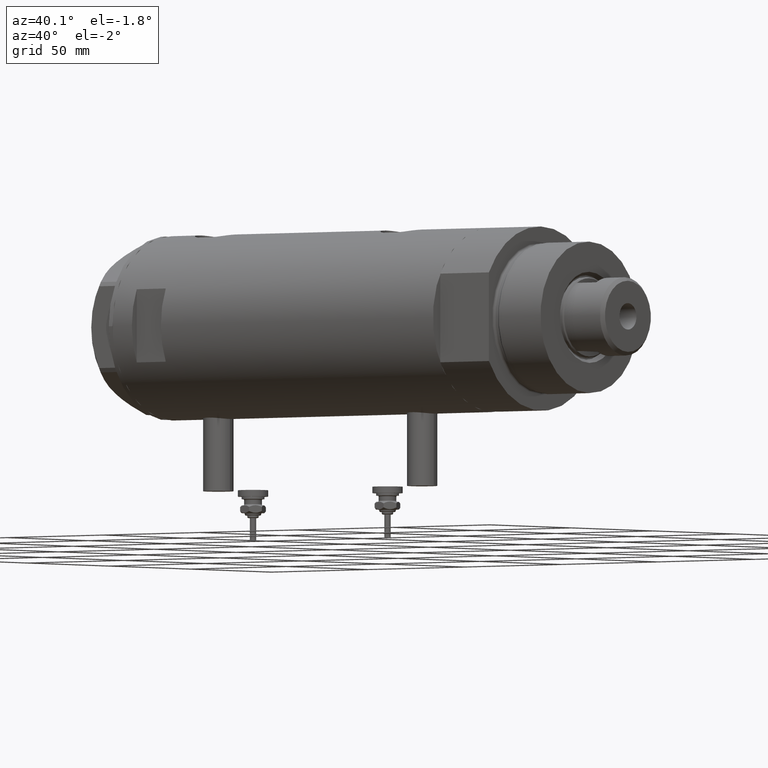
[diagram: clean part render]
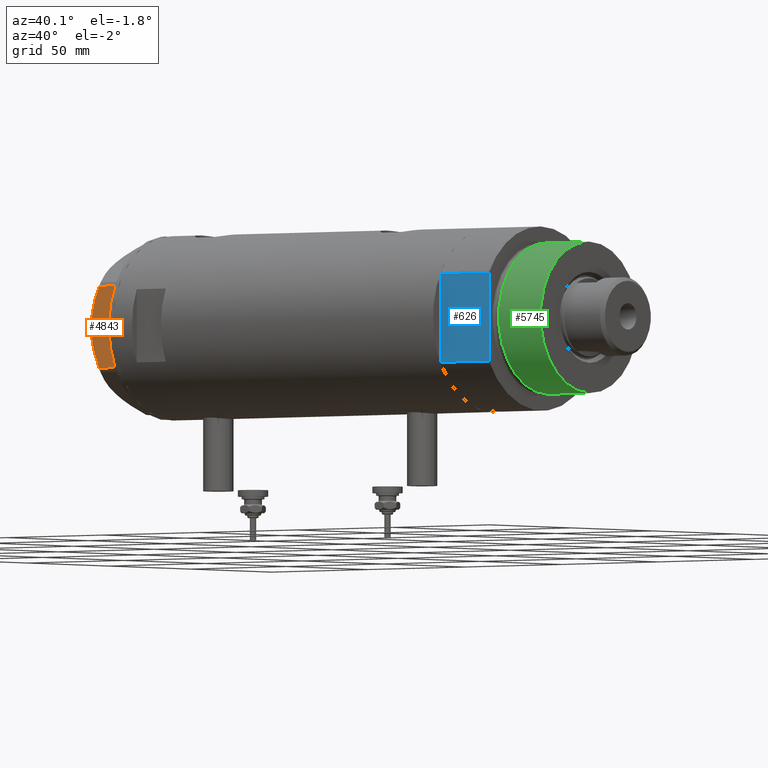
[diagram: same view with three faces highlighted in distinct colors, each labeled with its STEP entity id]
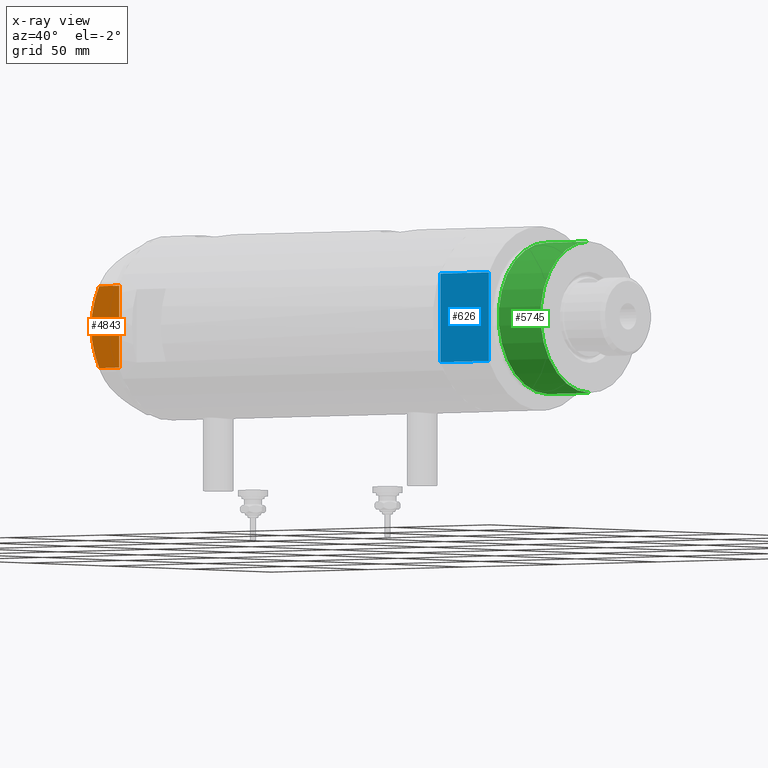
[diagram: x-ray of the same camera — body ghosted, the three highlighted faces saturated]
A machine part, auxiliary view with three faces highlighted in distinct colors.
The next image is the same camera in x-ray (body ghosted, the three faces saturated) — at least one of them is partly hidden behind the body in this view.
Their STEP definitions:

[orange] entity #4843 — the highlighted planar face has unit normal (-0, 1, 0).
#26 = VERTEX_POINT ( 'NONE', #1956 ) ;
#49 = ORIENTED_EDGE ( 'NONE', *, *, #1407, .F. ) ;
#127 = CARTESIAN_POINT ( 'NONE',  ( -30.00000000000001421, 14.93680064777130312, 11.00564802993687508 ) ) ;
#239 = EDGE_CURVE ( 'NONE', #3795, #26, #1357, .T. ) ;
#392 = CARTESIAN_POINT ( 'NONE',  ( -30.00000000000000000, -6.973771051792319042, 13.72753822183687511 ) ) ;
#697 = DIRECTION ( 'NONE',  ( 0.000000000000000000, 0.000000000000000000, -1.000000000000000000 ) ) ;
#814 = CARTESIAN_POINT ( 'NONE',  ( -29.99999999999999289, -14.92797448277034533, 10.99622797424084553 ) ) ;
#901 = CARTESIAN_POINT ( 'NONE',  ( -30.00000000000000000, -16.20050807568876294, 14.50000000000000000 ) ) ;
#1207 = DIRECTION ( 'NONE',  ( 0.000000000000000000, -1.000000000000000000, 0.000000000000000000 ) ) ;
#1268 = VERTEX_POINT ( 'NONE', #3963 ) ;
#1332 = ORIENTED_EDGE ( 'NONE', *, *, #1347, .F. ) ;
#1347 = EDGE_CURVE ( 'NONE', #1268, #26, #2064, .T. ) ;
#1357 = LINE ( 'NONE', #901, #3154 ) ;
#1371 = CARTESIAN_POINT ( 'NONE',  ( -30.00000000000000000, 0.000000000000000000, 14.50000000000000000 ) ) ;
#1407 = EDGE_CURVE ( 'NONE', #3229, #1268, #2428, .T. ) ;
#1650 = CARTESIAN_POINT ( 'NONE',  ( -29.99999999999999645, -2.827567415490778835, 14.37523681947611109 ) ) ;
#1888 = CARTESIAN_POINT ( 'NONE',  ( -30.00000000000000355, -1.418661615092686290, 14.47469700449902952 ) ) ;
#1895 = ORIENTED_EDGE ( 'NONE', *, *, #4313, .T. ) ;
#1956 = CARTESIAN_POINT ( 'NONE',  ( -30.00000000000000000, -16.20050807568876294, 10.40518423703603901 ) ) ;
#2064 = B_SPLINE_CURVE_WITH_KNOTS ( 'NONE', 3,
 ( #1371, #3308, #1888, #1650, #2197, #4515, #392, #5447, #5474, #2705, #4934, #814, #2650, #2234 ),
 .UNSPECIFIED., .F., .F.,
 ( 4, 2, 2, 2, 2, 2, 4 ),
 ( 0.06183748343640969869, 0.06393495742991751885, 0.06603243142342535288, 0.07022737941044099319, 0.07442232739745664738, 0.07651980139096448141, 0.07861727538447230157 ),
 .UNSPECIFIED. ) ;
#2197 = CARTESIAN_POINT ( 'NONE',  ( -30.00000000000000000, -3.526431665117130798, 14.30125973663612626 ) ) ;
#2204 = ORIENTED_EDGE ( 'NONE', *, *, #239, .T. ) ;
#2234 = CARTESIAN_POINT ( 'NONE',  ( -30.00000000000000000, -16.20050807568876294, 10.40518423703603901 ) ) ;
#2428 = B_SPLINE_CURVE_WITH_KNOTS ( 'NONE', 3,
 ( #4651, #127, #2758, #3903, #3937, #3003, #2476, #2939, #2913, #4837 ),
 .UNSPECIFIED., .F., .F.,
 ( 4, 2, 2, 2, 4 ),
 ( 0.04501738275285960267, 0.04922240792374713014, 0.05132492050919089388, 0.05342743309463465068, 0.06183748343640969869 ),
 .UNSPECIFIED. ) ;
#2476 = CARTESIAN_POINT ( 'NONE',  ( -30.00000000000000711, 8.981118657900116986, 13.19130745470829247 ) ) ;
#2649 = CARTESIAN_POINT ( 'NONE',  ( -30.00000000000000000, 16.20050807568875584, 10.40518423703603546 ) ) ;
#2650 = CARTESIAN_POINT ( 'NONE',  ( -29.99999999999999289, -15.56759648729806322, 10.70591879357992227 ) ) ;
#2705 = CARTESIAN_POINT ( 'NONE',  ( -29.99999999999999645, -12.97715359595204809, 11.81918444541430624 ) ) ;
#2732 = DIRECTION ( 'NONE',  ( 0.000000000000000000, 0.000000000000000000, 1.000000000000000000 ) ) ;
#2758 = CARTESIAN_POINT ( 'NONE',  ( -30.00000000000000355, 13.64854889245356695, 11.56384586935411996 ) ) ;
#2913 = CARTESIAN_POINT ( 'NONE',  ( -30.00000000000000711, 2.830925467268496476, 14.50000000000000533 ) ) ;
#2915 = FACE_OUTER_BOUND ( 'NONE', #5696, .T. ) ;
#2939 = CARTESIAN_POINT ( 'NONE',  ( -30.00000000000000000, 5.593935073701701732, 14.09487059093540573 ) ) ;
#2961 = CARTESIAN_POINT ( 'NONE',  ( -30.00000000000000000, 16.20050807568875584, 14.50000000000000000 ) ) ;
#3003 = CARTESIAN_POINT ( 'NONE',  ( -30.00000000000000000, 9.655259153795977767, 12.99093232113973606 ) ) ;
#3154 = VECTOR ( 'NONE', #2732, 1000.000000000000000 ) ;
#3229 = VERTEX_POINT ( 'NONE', #2649 ) ;
#3239 = CARTESIAN_POINT ( 'NONE',  ( -30.00000000000000000, 16.20050807568875584, 0.000000000000000000 ) ) ;
#3252 = VECTOR ( 'NONE', #697, 1000.000000000000000 ) ;
#3308 = CARTESIAN_POINT ( 'NONE',  ( -30.00000000000000000, -0.7060353153488233557, 14.49999999999999822 ) ) ;
#3316 = VERTEX_POINT ( 'NONE', #3239 ) ;
#3356 = VECTOR ( 'NONE', #1207, 1000.000000000000000 ) ;
#3535 = ORIENTED_EDGE ( 'NONE', *, *, #3846, .T. ) ;
#3795 = VERTEX_POINT ( 'NONE', #5727 ) ;
#3840 = LINE ( 'NONE', #5677, #3356 ) ;
#3846 = EDGE_CURVE ( 'NONE', #3229, #3316, #5253, .T. ) ;
#3903 = CARTESIAN_POINT ( 'NONE',  ( -30.00000000000000000, 11.66725319103952607, 12.31690447555093293 ) ) ;
#3937 = CARTESIAN_POINT ( 'NONE',  ( -30.00000000000000355, 10.99748736931232607, 12.55407623651775495 ) ) ;
#3963 = CARTESIAN_POINT ( 'NONE',  ( -30.00000000000000000, 0.000000000000000000, 14.50000000000000000 ) ) ;
#4313 = EDGE_CURVE ( 'NONE', #3316, #3795, #3840, .T. ) ;
#4494 = DIRECTION ( 'NONE',  ( -0.000000000000000000, 0.000000000000000000, -1.000000000000000000 ) ) ;
#4515 = CARTESIAN_POINT ( 'NONE',  ( -29.99999999999999289, -5.607365453019637513, 14.01139032121647965 ) ) ;
#4651 = CARTESIAN_POINT ( 'NONE',  ( -30.00000000000000000, 16.20050807568875584, 10.40518423703603546 ) ) ;
#4799 = AXIS2_PLACEMENT_3D ( 'NONE', #4884, #4974, #4494 ) ;
#4837 = CARTESIAN_POINT ( 'NONE',  ( -30.00000000000000000, 0.000000000000000000, 14.50000000000000000 ) ) ;
#4843 = ADVANCED_FACE ( 'NONE', ( #2915 ), #5503, .F. ) ;
#4884 = CARTESIAN_POINT ( 'NONE',  ( -30.00000000000000000, 17.32050807568877460, 14.50000000000000000 ) ) ;
#4934 = CARTESIAN_POINT ( 'NONE',  ( -29.99999999999999289, -13.63320717147166405, 11.55272916346384804 ) ) ;
#4974 = DIRECTION ( 'NONE',  ( 1.000000000000000000, 0.000000000000000000, -0.000000000000000000 ) ) ;
#5253 = LINE ( 'NONE', #2961, #3252 ) ;
#5447 = CARTESIAN_POINT ( 'NONE',  ( -29.99999999999999645, -9.671229349009038856, 13.00645148086949554 ) ) ;
#5474 = CARTESIAN_POINT ( 'NONE',  ( -30.00000000000000000, -11.00230860792644982, 12.56933207488871673 ) ) ;
#5503 = PLANE ( 'NONE',  #4799 ) ;
#5677 = CARTESIAN_POINT ( 'NONE',  ( -30.00000000000000000, 17.32050807568877460, 0.000000000000000000 ) ) ;
#5696 = EDGE_LOOP ( 'NONE', ( #49, #3535, #1895, #2204, #1332 ) ) ;
#5727 = CARTESIAN_POINT ( 'NONE',  ( -30.00000000000000000, -16.20050807568876294, 0.000000000000000000 ) ) ;

[blue] entity #626 — the highlighted planar face has unit normal (-0, 1, 0).
#65 = EDGE_CURVE ( 'NONE', #2491, #2079, #594, .T. ) ;
#82 = VECTOR ( 'NONE', #3894, 1000.000000000000000 ) ;
#163 = EDGE_CURVE ( 'NONE', #5369, #4703, #3604, .T. ) ;
#544 = VERTEX_POINT ( 'NONE', #2690 ) ;
#594 = LINE ( 'NONE', #4376, #5175 ) ;
#626 = ADVANCED_FACE ( 'NONE', ( #1067 ), #1452, .F. ) ;
#657 = CARTESIAN_POINT ( 'NONE',  ( 0.000000000000000000, -32.00000000000000000, 0.000000000000000000 ) ) ;
#1067 = FACE_OUTER_BOUND ( 'NONE', #2130, .T. ) ;
#1121 = LINE ( 'NONE', #4092, #5071 ) ;
#1252 = EDGE_CURVE ( 'NONE', #4703, #544, #2081, .T. ) ;
#1452 = PLANE ( 'NONE',  #2555 ) ;
#1515 = VECTOR ( 'NONE', #3130, 1000.000000000000000 ) ;
#1592 = ORIENTED_EDGE ( 'NONE', *, *, #1597, .F. ) ;
#1597 = EDGE_CURVE ( 'NONE', #2491, #5369, #1121, .T. ) ;
#2079 = VERTEX_POINT ( 'NONE', #3198 ) ;
#2081 = LINE ( 'NONE', #5818, #82 ) ;
#2130 = EDGE_LOOP ( 'NONE', ( #3138, #5564, #2904, #1592, #4887 ) ) ;
#2491 = VERTEX_POINT ( 'NONE', #3804 ) ;
#2555 = AXIS2_PLACEMENT_3D ( 'NONE', #3731, #3225, #4247 ) ;
#2571 = EDGE_CURVE ( 'NONE', #2079, #544, #5463, .T. ) ;
#2690 = CARTESIAN_POINT ( 'NONE',  ( -17.55704986607943496, -32.00000000000000000, 25.19999999999999929 ) ) ;
#2904 = ORIENTED_EDGE ( 'NONE', *, *, #163, .F. ) ;
#3130 = DIRECTION ( 'NONE',  ( -1.000000000000000000, -0.000000000000000000, -0.000000000000000000 ) ) ;
#3138 = ORIENTED_EDGE ( 'NONE', *, *, #2571, .T. ) ;
#3198 = CARTESIAN_POINT ( 'NONE',  ( 17.55704986607943496, -32.00000000000000000, 25.19999999999999929 ) ) ;
#3225 = DIRECTION ( 'NONE',  ( -0.000000000000000000, 1.000000000000000000, 0.000000000000000000 ) ) ;
#3557 = VECTOR ( 'NONE', #5383, 1000.000000000000000 ) ;
#3604 = LINE ( 'NONE', #5446, #1515 ) ;
#3731 = CARTESIAN_POINT ( 'NONE',  ( -17.55704986607943141, -32.00000000000000000, 0.000000000000000000 ) ) ;
#3804 = CARTESIAN_POINT ( 'NONE',  ( 17.55704986607943141, -32.00000000000000000, 0.000000000000000000 ) ) ;
#3894 = DIRECTION ( 'NONE',  ( -0.000000000000000000, -0.000000000000000000, 1.000000000000000000 ) ) ;
#4092 = CARTESIAN_POINT ( 'NONE',  ( -17.55704986607943141, -32.00000000000000000, 0.000000000000000000 ) ) ;
#4247 = DIRECTION ( 'NONE',  ( 0.000000000000000000, -0.000000000000000000, 1.000000000000000000 ) ) ;
#4376 = CARTESIAN_POINT ( 'NONE',  ( 17.55704986607943141, -32.00000000000000000, 0.000000000000000000 ) ) ;
#4562 = CARTESIAN_POINT ( 'NONE',  ( -17.55704986607943141, -32.00000000000000000, 25.19999999999999929 ) ) ;
#4703 = VERTEX_POINT ( 'NONE', #5673 ) ;
#4887 = ORIENTED_EDGE ( 'NONE', *, *, #65, .T. ) ;
#5071 = VECTOR ( 'NONE', #5531, 1000.000000000000000 ) ;
#5175 = VECTOR ( 'NONE', #5684, 1000.000000000000000 ) ;
#5369 = VERTEX_POINT ( 'NONE', #657 ) ;
#5383 = DIRECTION ( 'NONE',  ( -1.000000000000000000, -0.000000000000000000, -0.000000000000000000 ) ) ;
#5446 = CARTESIAN_POINT ( 'NONE',  ( -17.55704986607943141, -32.00000000000000000, 0.000000000000000000 ) ) ;
#5463 = LINE ( 'NONE', #4562, #3557 ) ;
#5531 = DIRECTION ( 'NONE',  ( -1.000000000000000000, -0.000000000000000000, -0.000000000000000000 ) ) ;
#5564 = ORIENTED_EDGE ( 'NONE', *, *, #1252, .F. ) ;
#5673 = CARTESIAN_POINT ( 'NONE',  ( -17.55704986607943496, -32.00000000000000000, 0.000000000000000000 ) ) ;
#5684 = DIRECTION ( 'NONE',  ( -0.000000000000000000, -0.000000000000000000, 1.000000000000000000 ) ) ;
#5818 = CARTESIAN_POINT ( 'NONE',  ( -17.55704986607943141, -32.00000000000000000, 0.000000000000000000 ) ) ;

[green] entity #5745 — the highlighted cylindrical surface (partial cylindrical patch) has radius 30 mm, axis along (-1, -0, 0).
#92 = CARTESIAN_POINT ( 'NONE',  ( -30.00000000000000000, 0.000000000000000000, 50.19999999999999574 ) ) ;
#105 = CYLINDRICAL_SURFACE ( 'NONE', #3366, 30.00000000000000000 ) ;
#535 = FACE_OUTER_BOUND ( 'NONE', #2052, .T. ) ;
#1065 = ORIENTED_EDGE ( 'NONE', *, *, #5437, .T. ) ;
#1449 = DIRECTION ( 'NONE',  ( 0.000000000000000000, 0.000000000000000000, 1.000000000000000000 ) ) ;
#1521 = LINE ( 'NONE', #2991, #1909 ) ;
#1773 = ORIENTED_EDGE ( 'NONE', *, *, #4954, .T. ) ;
#1909 = VECTOR ( 'NONE', #3350, 1000.000000000000000 ) ;
#1983 = DIRECTION ( 'NONE',  ( -0.000000000000000000, -0.000000000000000000, -1.000000000000000000 ) ) ;
#2052 = EDGE_LOOP ( 'NONE', ( #2720, #3177, #1065, #1773 ) ) ;
#2436 = DIRECTION ( 'NONE',  ( 1.000000000000000000, 0.000000000000000000, 0.000000000000000000 ) ) ;
#2497 = VERTEX_POINT ( 'NONE', #5640 ) ;
#2501 = AXIS2_PLACEMENT_3D ( 'NONE', #5574, #1449, #2436 ) ;
#2720 = ORIENTED_EDGE ( 'NONE', *, *, #3811, .F. ) ;
#2800 = CIRCLE ( 'NONE', #2501, 30.00000000000000000 ) ;
#2809 = DIRECTION ( 'NONE',  ( -0.000000000000000000, -0.000000000000000000, -1.000000000000000000 ) ) ;
#2991 = CARTESIAN_POINT ( 'NONE',  ( 30.00000000000000000, 3.673940397442058389E-15, 50.19999999999999574 ) ) ;
#3177 = ORIENTED_EDGE ( 'NONE', *, *, #5728, .F. ) ;
#3286 = CARTESIAN_POINT ( 'NONE',  ( -30.00000000000000000, 0.000000000000000000, 50.19999999999999574 ) ) ;
#3350 = DIRECTION ( 'NONE',  ( -0.000000000000000000, -0.000000000000000000, -1.000000000000000000 ) ) ;
#3366 = AXIS2_PLACEMENT_3D ( 'NONE', #3792, #1983, #5655 ) ;
#3456 = AXIS2_PLACEMENT_3D ( 'NONE', #3914, #4484, #4875 ) ;
#3792 = CARTESIAN_POINT ( 'NONE',  ( 0.000000000000000000, 0.000000000000000000, 50.19999999999999574 ) ) ;
#3811 = EDGE_CURVE ( 'NONE', #2497, #4759, #1521, .T. ) ;
#3914 = CARTESIAN_POINT ( 'NONE',  ( 0.000000000000000000, 0.000000000000000000, 28.57384048104054486 ) ) ;
#4423 = VERTEX_POINT ( 'NONE', #4467 ) ;
#4467 = CARTESIAN_POINT ( 'NONE',  ( -30.00000000000000000, 0.000000000000000000, 28.57384048104054486 ) ) ;
#4484 = DIRECTION ( 'NONE',  ( -0.000000000000000000, -0.000000000000000000, 1.000000000000000000 ) ) ;
#4707 = CIRCLE ( 'NONE', #3456, 30.00000000000000000 ) ;
#4759 = VERTEX_POINT ( 'NONE', #5840 ) ;
#4875 = DIRECTION ( 'NONE',  ( 1.000000000000000000, 0.000000000000000000, 0.000000000000000000 ) ) ;
#4954 = EDGE_CURVE ( 'NONE', #4423, #4759, #4707, .T. ) ;
#5165 = LINE ( 'NONE', #3286, #5674 ) ;
#5168 = VERTEX_POINT ( 'NONE', #92 ) ;
#5437 = EDGE_CURVE ( 'NONE', #5168, #4423, #5165, .T. ) ;
#5574 = CARTESIAN_POINT ( 'NONE',  ( 0.000000000000000000, 0.000000000000000000, 50.19999999999999574 ) ) ;
#5640 = CARTESIAN_POINT ( 'NONE',  ( 30.00000000000000000, 3.673940397442058389E-15, 50.19999999999999574 ) ) ;
#5655 = DIRECTION ( 'NONE',  ( -1.000000000000000000, 0.000000000000000000, 0.000000000000000000 ) ) ;
#5674 = VECTOR ( 'NONE', #2809, 1000.000000000000000 ) ;
#5728 = EDGE_CURVE ( 'NONE', #5168, #2497, #2800, .T. ) ;
#5745 = ADVANCED_FACE ( 'NONE', ( #535 ), #105, .T. ) ;
#5840 = CARTESIAN_POINT ( 'NONE',  ( 30.00000000000000000, 3.673940397442058389E-15, 28.57384048104054486 ) ) ;